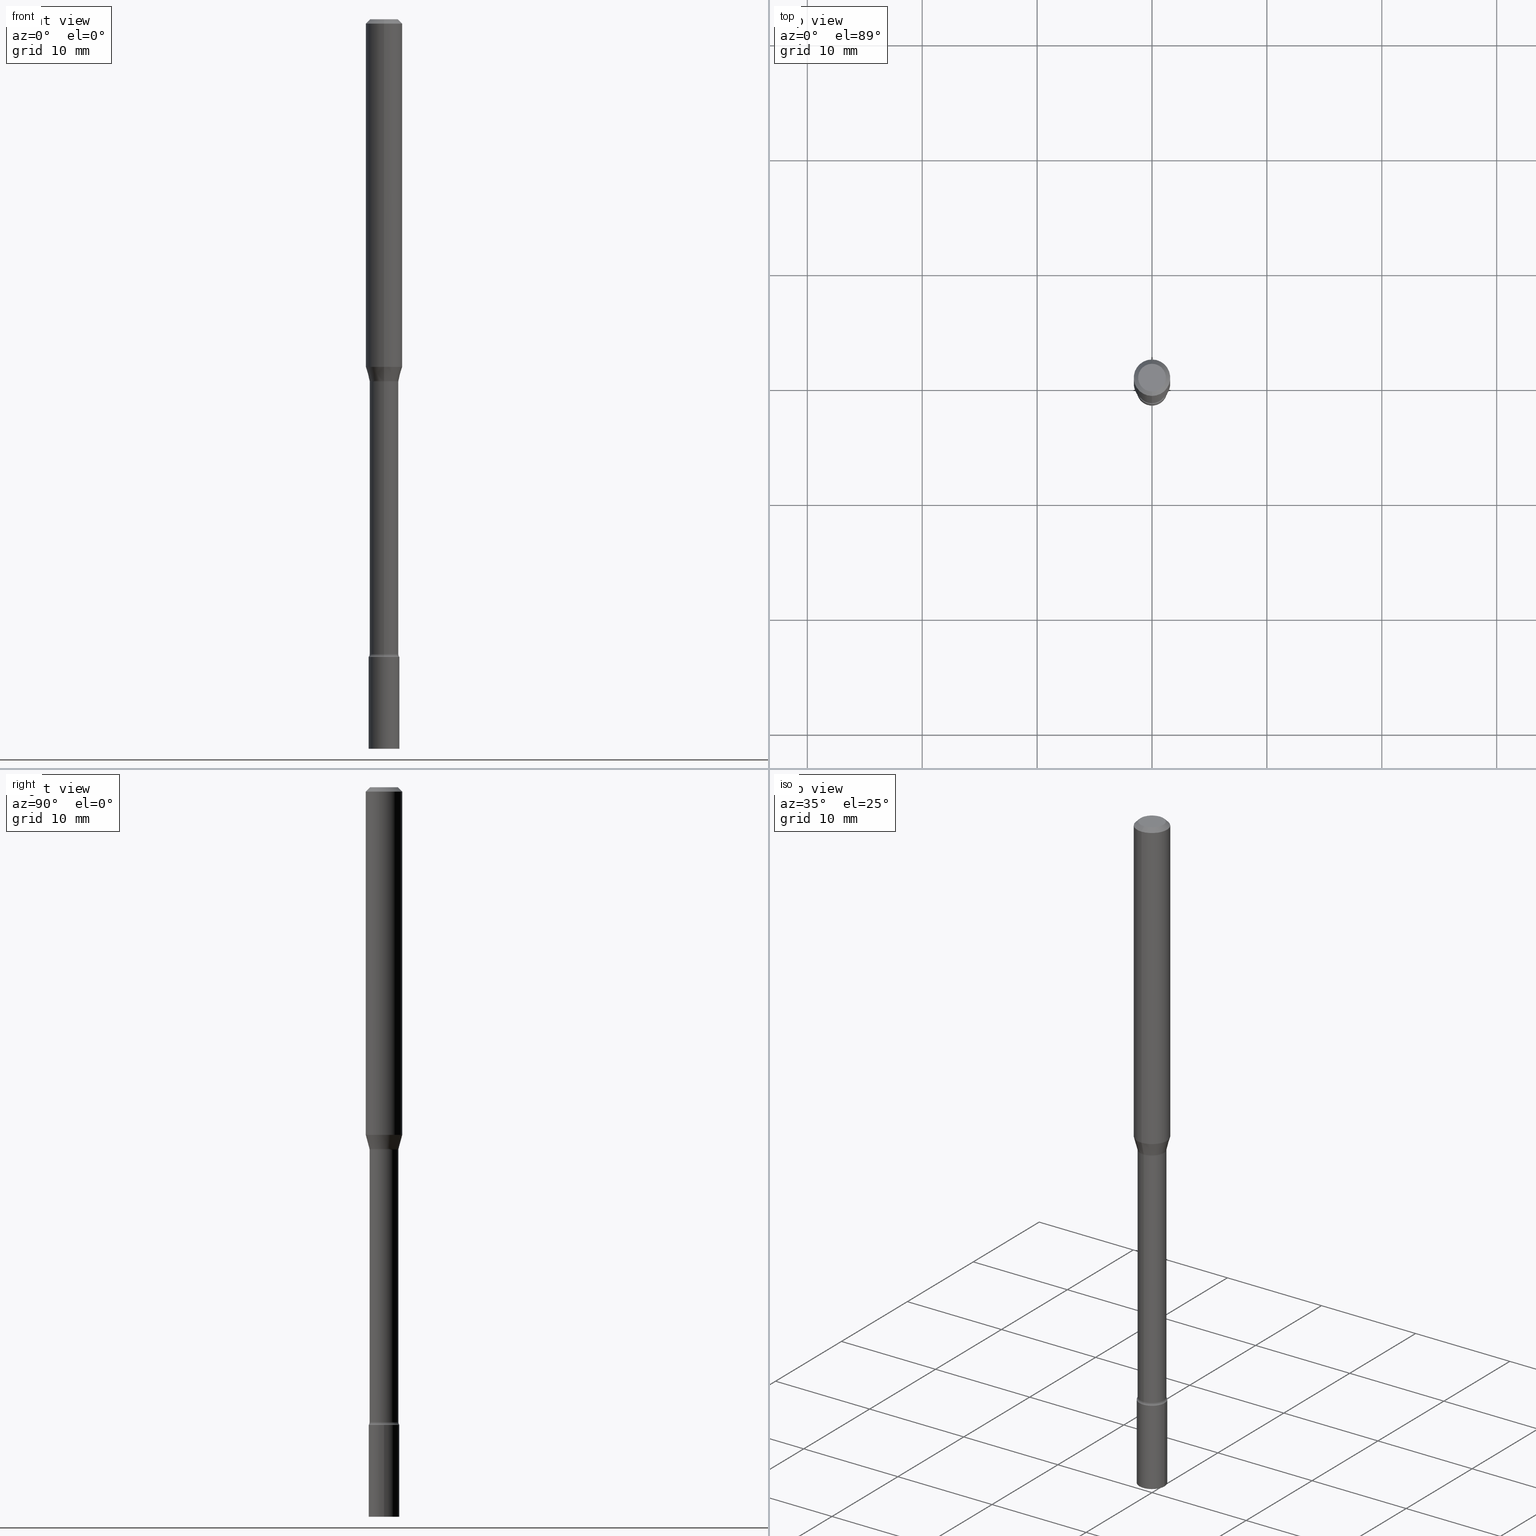
[diagram: canonical four-view strip — front | top / right | iso, engineering-drawing reading convention]
A machine part, canonical four-view strip (front | top / right | iso — engineering-drawing reading convention). The complete STEP part file that produces these views, byte-faithful:
ISO-10303-21;
HEADER;
FILE_DESCRIPTION (( 'STEP AP203' ),
    '1' );
FILE_NAME ('04318.STEP',
    '2024-03-08T23:07:44',
    ( '' ),
    ( '' ),
    'SwSTEP 2.0',
    'SolidWorks 2023',
    '' );
FILE_SCHEMA (( 'CONFIG_CONTROL_DESIGN' ));
ENDSEC;

DATA;
#1 = DIRECTION ( 'NONE',  ( 2.438088387897960049E-29, -3.491481338843145188E-15, -1.000000000000000000 ) ) ;
#2 = DIRECTION ( 'NONE',  ( -2.445520985940989068E-29, 3.491406614462877514E-15, 1.000000000000000000 ) ) ;
#3 = CYLINDRICAL_SURFACE ( 'NONE', #147, 0.06250000000000000000 ) ;
#4 = CARTESIAN_POINT ( 'NONE',  ( 4.440892098500918040E-16, 0.06249999999999587830, -1.191123531880469821 ) ) ;
#5 = DIRECTION ( 'NONE',  ( 1.000000000000000000, -6.982962677686268288E-15, 0.000000000000000000 ) ) ;
#6 = CONICAL_SURFACE ( 'NONE', #356, 0.06250000000000000000, 0.7853981633974483900 ) ;
#7 = CIRCLE ( 'NONE', #413, 0.05249999999999999806 ) ;
#8 = EDGE_LOOP ( 'NONE', ( #333, #244, #306, #433 ) ) ;
#9 = DIRECTION ( 'NONE',  ( -2.445520985940989068E-29, 3.491406614462877514E-15, 1.000000000000000000 ) ) ;
#10 = PERSON_AND_ORGANIZATION ( #282, #505 ) ;
#11 = CC_DESIGN_PERSON_AND_ORGANIZATION_ASSIGNMENT ( #402, #56, ( #197 ) ) ;
#12 = CIRCLE ( 'NONE', #95, 0.06250000000000000000 ) ;
#13 = DIRECTION ( 'NONE',  ( 1.000000000000000000, -6.982962677686265922E-15, 4.876176775795935793E-29 ) ) ;
#14 = ORIENTED_EDGE ( 'NONE', *, *, #266, .T. ) ;
#15 = CYLINDRICAL_SURFACE ( 'NONE', #474, 0.04935000000000002579 ) ;
#16 = ORIENTED_EDGE ( 'NONE', *, *, #47, .T. ) ;
#17 = CARTESIAN_POINT ( 'NONE',  ( -4.493536483090587310E-16, -0.06435000000000769271, -2.175803397366418146 ) ) ;
#18 = CIRCLE ( 'NONE', #315, 0.04749999999999999362 ) ;
#19 = CARTESIAN_POINT ( 'NONE',  ( 4.572342504616547735E-16, 0.06434999999999566067, -1.242174787463811381 ) ) ;
#20 = CIRCLE ( 'NONE', #294, 0.01500000000000002720 ) ;
#21 = CARTESIAN_POINT ( 'NONE',  ( -4.364351673553623336E-16, -0.06250000000000412170, -1.191123531880469377 ) ) ;
#22 = EDGE_CURVE ( 'NONE', #93, #165, #80, .T. ) ;
#23 = ORIENTED_EDGE ( 'NONE', *, *, #112, .F. ) ;
#24 = CC_DESIGN_PERSON_AND_ORGANIZATION_ASSIGNMENT ( #10, #363, ( #39 ) ) ;
#25 = DIRECTION ( 'NONE',  ( -2.445468806185136597E-29, 3.491481338843145583E-15, 1.000000000000000000 ) ) ;
#26 = CONICAL_SURFACE ( 'NONE', #89, 0.04986111260566397640, 0.2617993877991508511 ) ;
#27 = VERTEX_POINT ( 'NONE', #447 ) ;
#28 = MECHANICAL_CONTEXT ( 'NONE', #107, 'mechanical' ) ;
#29 = CARTESIAN_POINT ( 'NONE',  ( 5.343349341514523419E-29, -7.628886725372273518E-15, -2.185000000000000053 ) ) ;
#30 = ORIENTED_EDGE ( 'NONE', *, *, #419, .F. ) ;
#31 = DIRECTION ( 'NONE',  ( -6.982962677686265133E-15, -1.000000000000000000, 5.535659561629705166E-15 ) ) ;
#32 = APPLICATION_PROTOCOL_DEFINITION ( 'international standard', 'config_control_design', 1994, #379 ) ;
#33 = ADVANCED_FACE ( 'NONE', ( #113 ), #15, .T. ) ;
#34 = VERTEX_POINT ( 'NONE', #331 ) ;
#35 = CARTESIAN_POINT ( 'NONE',  ( 6.113672015462842613E-29, -8.728703347107864943E-15, -2.500000000000000000 ) ) ;
#36 = PERSON_AND_ORGANIZATION ( #282, #505 ) ;
#37 = VERTEX_POINT ( 'NONE', #88 ) ;
#38 = AXIS2_PLACEMENT_3D ( 'NONE', #70, #304, #256 ) ;
#39 = PRODUCT_DEFINITION_FORMATION_WITH_SPECIFIED_SOURCE ( 'ANY', '', #86, .NOT_KNOWN. ) ;
#40 = CARTESIAN_POINT ( 'NONE',  ( 3.666055405785900996E-16, 0.05249999999999126893, -2.500000000000000000 ) ) ;
#41 = CARTESIAN_POINT ( 'NONE',  ( 3.840629472727447874E-16, 0.04749999999999999362, -1.947592745229184119E-16 ) ) ;
#42 = DIRECTION ( 'NONE',  ( -2.445520985940989068E-29, 3.491406614462877514E-15, 1.000000000000000000 ) ) ;
#43 = ADVANCED_BREP_SHAPE_REPRESENTATION ( '04318', ( #470, #291, #214 ), #205 ) ;
#44 = DIRECTION ( 'NONE',  ( -6.982962677686263555E-15, -1.000000000000000000, 0.000000000000000000 ) ) ;
#45 = DIRECTION ( 'NONE',  ( -6.982962677686265922E-15, -1.000000000000000000, 3.491406614462877514E-15 ) ) ;
#46 = AXIS2_PLACEMENT_3D ( 'NONE', #434, #141, #215 ) ;
#47 = EDGE_CURVE ( 'NONE', #93, #27, #18, .T. ) ;
#48 = DIRECTION ( 'NONE',  ( 1.000000000000000000, -6.982962677686268288E-15, 0.000000000000000000 ) ) ;
#49 = PERSON_AND_ORGANIZATION ( #282, #505 ) ;
#50 = EDGE_CURVE ( 'NONE', #37, #317, #83, .T. ) ;
#51 = AXIS2_PLACEMENT_3D ( 'NONE', #480, #369, #230 ) ;
#52 = DIRECTION ( 'NONE',  ( -6.982962677686265133E-15, -1.000000000000000000, 3.491406614462877119E-15 ) ) ;
#53 = CARTESIAN_POINT ( 'NONE',  ( -4.493536483090808191E-16, -0.06435000000000433429, -1.242174787463810715 ) ) ;
#54 = ORIENTED_EDGE ( 'NONE', *, *, #203, .T. ) ;
#55 = PLANE ( 'NONE',  #459 ) ;
#56 = PERSON_AND_ORGANIZATION_ROLE ( 'classification_officer' ) ;
#57 = CARTESIAN_POINT ( 'NONE',  ( -4.364351673553916201E-16, -0.06250000000000000000, 2.182129134039298446E-16 ) ) ;
#58 = CIRCLE ( 'NONE', #51, 0.06250000000000000000 ) ;
#59 = CIRCLE ( 'NONE', #503, 0.01500000000000002720 ) ;
#60 = CC_DESIGN_SECURITY_CLASSIFICATION ( #197, ( #39 ) ) ;
#61 = ORIENTED_EDGE ( 'NONE', *, *, #140, .T. ) ;
#62 = DIRECTION ( 'NONE',  ( -6.982962677686265133E-15, -1.000000000000000000, 5.478915031980130409E-15 ) ) ;
#63 = ORIENTED_EDGE ( 'NONE', *, *, #449, .T. ) ;
#64 = CARTESIAN_POINT ( 'NONE',  ( -4.364351673553912750E-16, -0.06250000000000005551, -0.01499999999999981209 ) ) ;
#65 = VECTOR ( 'NONE', #236, 39.37007874015748143 ) ;
#66 = FACE_OUTER_BOUND ( 'NONE', #350, .T. ) ;
#67 = CIRCLE ( 'NONE', #118, 0.04934999999999997722 ) ;
#68 = ORIENTED_EDGE ( 'NONE', *, *, #228, .T. ) ;
#69 = PERSON_AND_ORGANIZATION_ROLE ( 'creator' ) ;
#70 = CARTESIAN_POINT ( 'NONE',  ( 7.071825611163725075E-46, -1.009626122903400025E-31, -2.891746033593174331E-17 ) ) ;
#71 = ORIENTED_EDGE ( 'NONE', *, *, #241, .F. ) ;
#72 = DIRECTION ( 'NONE',  ( -2.445468806185136597E-29, 3.491481338843145583E-15, 1.000000000000000000 ) ) ;
#73 = ORIENTED_EDGE ( 'NONE', *, *, #241, .T. ) ;
#74 = DIRECTION ( 'NONE',  ( -1.807323732225333689E-15, -0.2588190451025186856, 0.9659258262890687563 ) ) ;
#75 = ORIENTED_EDGE ( 'NONE', *, *, #210, .T. ) ;
#76 = VECTOR ( 'NONE', #74, 39.37007874015748854 ) ;
#77 = PLANE ( 'NONE',  #218 ) ;
#78 = PERSON_AND_ORGANIZATION ( #282, #505 ) ;
#79 = CARTESIAN_POINT ( 'NONE',  ( -3.446092081438173769E-16, -0.04935000000000002579, 1.723009164237430813E-16 ) ) ;
#80 = LINE ( 'NONE', #484, #65 ) ;
#81 = CARTESIAN_POINT ( 'NONE',  ( 0.000000000000000000, 0.000000000000000000, 0.000000000000000000 ) ) ;
#82 = CARTESIAN_POINT ( 'NONE',  ( 3.028270299854146031E-29, -4.323382631379869950E-15, -1.238292501787273237 ) ) ;
#83 = CIRCLE ( 'NONE', #464, 0.01500000000000002720 ) ;
#84 = AXIS2_PLACEMENT_3D ( 'NONE', #281, #163, #404 ) ;
#85 = AXIS2_PLACEMENT_3D ( 'NONE', #175, #385, #62 ) ;
#86 = PRODUCT ( '04318', '04318', '', ( #28 ) ) ;
#87 = DIRECTION ( 'NONE',  ( -6.982962677686265922E-15, -1.000000000000000000, 4.370956789862821150E-15 ) ) ;
#88 = CARTESIAN_POINT ( 'NONE',  ( 3.618438881858846483E-16, 0.04934999999999246934, -2.175803397366418590 ) ) ;
#89 = AXIS2_PLACEMENT_3D ( 'NONE', #495, #337, #462 ) ;
#90 = DIRECTION ( 'NONE',  ( -2.445520985940989068E-29, 3.491406614462877514E-15, 1.000000000000000000 ) ) ;
#91 = EDGE_CURVE ( 'NONE', #394, #317, #146, .T. ) ;
#92 = PRODUCT_DEFINITION_SHAPE ( 'NONE', 'NONE',  #360 ) ;
#93 = VERTEX_POINT ( 'NONE', #41 ) ;
#94 = EDGE_CURVE ( 'NONE', #165, #403, #58, .T. ) ;
#95 = AXIS2_PLACEMENT_3D ( 'NONE', #183, #310, #515 ) ;
#96 = CC_DESIGN_DATE_AND_TIME_ASSIGNMENT ( #514, #268, ( #360 ) ) ;
#97 = ORIENTED_EDGE ( 'NONE', *, *, #312, .T. ) ;
#98 = ORIENTED_EDGE ( 'NONE', *, *, #308, .F. ) ;
#99 = EDGE_LOOP ( 'NONE', ( #425, #338, #61, #251 ) ) ;
#100 = DIRECTION ( 'NONE',  ( 1.000000000000000000, 0.000000000000000000, 0.000000000000000000 ) ) ;
#101 = ORIENTED_EDGE ( 'NONE', *, *, #50, .T. ) ;
#102 = CARTESIAN_POINT ( 'NONE',  ( -3.481782883932334471E-16, -0.04986111260566829240, -1.238292501787272792 ) ) ;
#103 = FACE_OUTER_BOUND ( 'NONE', #353, .T. ) ;
#104 = VERTEX_POINT ( 'NONE', #359 ) ;
#105 = DIRECTION ( 'NONE',  ( -2.445520985940989068E-29, 3.491406614462877514E-15, 1.000000000000000000 ) ) ;
#106 = COORDINATED_UNIVERSAL_TIME_OFFSET ( 5, 0, .BEHIND. ) ;
#107 = APPLICATION_CONTEXT ( 'configuration controlled 3d designs of mechanical parts and assemblies' ) ;
#108 = CARTESIAN_POINT ( 'NONE',  ( 4.572342504616782422E-16, 0.06434999999999249654, -2.175803397366418590 ) ) ;
#109 = CIRCLE ( 'NONE', #246, 0.05249999999999999806 ) ;
#110 = DIRECTION ( 'NONE',  ( -2.445520985940989068E-29, 3.491406614462877514E-15, 1.000000000000000000 ) ) ;
#111 = PERSON_AND_ORGANIZATION_ROLE ( 'design_owner' ) ;
#112 = EDGE_CURVE ( 'NONE', #37, #467, #157, .T. ) ;
#113 = FACE_OUTER_BOUND ( 'NONE', #465, .T. ) ;
#114 = LINE ( 'NONE', #234, #346 ) ;
#115 = ADVANCED_FACE ( 'NONE', ( #398 ), #55, .T. ) ;
#116 = SHAPE_DEFINITION_REPRESENTATION ( #92, #43 ) ;
#117 = TOROIDAL_SURFACE ( 'NONE', #328, 0.06435000000000008769, 0.01500000000000002373 ) ;
#118 = AXIS2_PLACEMENT_3D ( 'NONE', #348, #351, #513 ) ;
#119 = FACE_OUTER_BOUND ( 'NONE', #409, .T. ) ;
#120 = UNCERTAINTY_MEASURE_WITH_UNIT (LENGTH_MEASURE( 1.000000000000000082E-05 ), #309, 'distance_accuracy_value', 'NONE');
#121 = DIRECTION ( 'NONE',  ( -2.445520985940988788E-29, 3.491406614462877514E-15, 1.000000000000000000 ) ) ;
#122 = CARTESIAN_POINT ( 'NONE',  ( 0.000000000000000000, 0.000000000000000000, 0.000000000000000000 ) ) ;
#123 = FACE_OUTER_BOUND ( 'NONE', #133, .T. ) ;
#124 = DIRECTION ( 'NONE',  ( -2.445468806185136597E-29, 3.491481338843145583E-15, 1.000000000000000000 ) ) ;
#125 = ORIENTED_EDGE ( 'NONE', *, *, #173, .F. ) ;
#126 = ADVANCED_FACE ( 'NONE', ( #167 ), #6, .T. ) ;
#127 = EDGE_LOOP ( 'NONE', ( #516, #14, #324, #30 ) ) ;
#128 = CIRCLE ( 'NONE', #517, 0.06250000000000000000 ) ;
#129 = ORIENTED_EDGE ( 'NONE', *, *, #326, .F. ) ;
#130 = ADVANCED_FACE ( 'NONE', ( #276 ), #117, .F. ) ;
#131 = CARTESIAN_POINT ( 'NONE',  ( 0.000000000000000000, 0.000000000000000000, 0.000000000000000000 ) ) ;
#132 = ADVANCED_FACE ( 'NONE', ( #292 ), #77, .F. ) ;
#133 = EDGE_LOOP ( 'NONE', ( #184, #504, #383, #313 ) ) ;
#134 = FACE_OUTER_BOUND ( 'NONE', #8, .T. ) ;
#135 = VECTOR ( 'NONE', #340, 39.37007874015748143 ) ;
#136 = AXIS2_PLACEMENT_3D ( 'NONE', #150, #437, #371 ) ;
#137 = APPROVAL_PERSON_ORGANIZATION ( #185, #456, #273 ) ;
#138 = VERTEX_POINT ( 'NONE', #4 ) ;
#139 = VERTEX_POINT ( 'NONE', #374 ) ;
#140 = EDGE_CURVE ( 'NONE', #467, #394, #20, .T. ) ;
#141 = DIRECTION ( 'NONE',  ( -2.445520985940989068E-29, 3.491406614462877514E-15, 1.000000000000000000 ) ) ;
#142 = CARTESIAN_POINT ( 'NONE',  ( 5.343463354281061711E-29, -7.628723452601386385E-15, -2.185000000000000053 ) ) ;
#143 = ORIENTED_EDGE ( 'NONE', *, *, #312, .F. ) ;
#144 = CYLINDRICAL_SURFACE ( 'NONE', #316, 0.05249999999999999806 ) ;
#145 = COORDINATED_UNIVERSAL_TIME_OFFSET ( 5, 0, .BEHIND. ) ;
#146 = CIRCLE ( 'NONE', #441, 0.05249999999999999806 ) ;
#147 = AXIS2_PLACEMENT_3D ( 'NONE', #162, #191, #307 ) ;
#148 = ORIENTED_EDGE ( 'NONE', *, *, #91, .F. ) ;
#149 = APPLICATION_PROTOCOL_DEFINITION ( 'international standard', 'config_control_design', 1994, #107 ) ;
#150 = CARTESIAN_POINT ( 'NONE',  ( 5.320859336651219735E-29, -7.596776958896367928E-15, -2.175803397366418590 ) ) ;
#151 = EDGE_LOOP ( 'NONE', ( #148, #300 ) ) ;
#152 = EDGE_CURVE ( 'NONE', #429, #493, #478, .T. ) ;
#153 = DIRECTION ( 'NONE',  ( 0.000000000000000000, 0.000000000000000000, 1.000000000000000000 ) ) ;
#154 = CARTESIAN_POINT ( 'NONE',  ( 3.668281478911491082E-31, -5.237109921694327463E-17, -0.01500000000000003067 ) ) ;
#155 = CARTESIAN_POINT ( 'NONE',  ( 3.666055405785824082E-16, 0.05249999999999236527, -2.185000000000000497 ) ) ;
#156 = ADVANCED_FACE ( 'NONE', ( #227 ), #475, .F. ) ;
#157 = CIRCLE ( 'NONE', #345, 0.04935000000000006742 ) ;
#158 = DIRECTION ( 'NONE',  ( 7.105427357601001859E-15, 1.000000000000000000, 0.000000000000000000 ) ) ;
#159 = CIRCLE ( 'NONE', #460, 0.05249999999999999806 ) ;
#160 = FACE_OUTER_BOUND ( 'NONE', #180, .T. ) ;
#161 = LINE ( 'NONE', #461, #219 ) ;
#162 = CARTESIAN_POINT ( 'NONE',  ( 0.000000000000000000, 0.000000000000000000, 0.000000000000000000 ) ) ;
#163 = DIRECTION ( 'NONE',  ( -2.445520985940989068E-29, 3.491406614462877514E-15, 1.000000000000000000 ) ) ;
#164 = AXIS2_PLACEMENT_3D ( 'NONE', #384, #506, #179 ) ;
#165 = VERTEX_POINT ( 'NONE', #186 ) ;
#166 = DIMENSIONAL_EXPONENTS ( 1.000000000000000000, 0.000000000000000000, 0.000000000000000000, 0.000000000000000000, 0.000000000000000000, 0.000000000000000000, 0.000000000000000000 ) ;
#167 = FACE_OUTER_BOUND ( 'NONE', #311, .T. ) ;
#168 = DIRECTION ( 'NONE',  ( -6.982962677686263555E-15, -1.000000000000000000, 0.000000000000000000 ) ) ;
#169 = FACE_OUTER_BOUND ( 'NONE', #417, .T. ) ;
#170 = VERTEX_POINT ( 'NONE', #510 ) ;
#171 = CLOSED_SHELL ( 'NONE', ( #428, #297, #130, #237, #189, #494, #329, #477, #126, #132, #264, #156, #33, #454 ) ) ;
#172 = AXIS2_PLACEMENT_3D ( 'NONE', #155, #121, #45 ) ;
#173 = EDGE_CURVE ( 'NONE', #27, #403, #161, .T. ) ;
#174 = DIRECTION ( 'NONE',  ( -2.445520985940989068E-29, 3.491406614462877514E-15, 1.000000000000000000 ) ) ;
#175 = CARTESIAN_POINT ( 'NONE',  ( 3.028270299854146031E-29, -4.323382631379869950E-15, -1.238292501787273237 ) ) ;
#176 = ORIENTED_EDGE ( 'NONE', *, *, #22, .F. ) ;
#177 = CARTESIAN_POINT ( 'NONE',  ( -3.446092081437867100E-16, -0.04935000000000431403, -1.242174787463810715 ) ) ;
#178 = LOCAL_TIME ( 18, 7, 44.00000000000000000, #106 ) ;
#179 = DIRECTION ( 'NONE',  ( -6.982962677686266711E-15, -1.000000000000000000, 3.491406614462877908E-15 ) ) ;
#180 = EDGE_LOOP ( 'NONE', ( #220, #501, #512, #424 ) ) ;
#181 = EDGE_CURVE ( 'NONE', #104, #139, #453, .T. ) ;
#182 = ORIENTED_EDGE ( 'NONE', *, *, #181, .F. ) ;
#183 = CARTESIAN_POINT ( 'NONE',  ( 2.912917594061839297E-29, -4.158696577849855606E-15, -1.191123531880469599 ) ) ;
#184 = ORIENTED_EDGE ( 'NONE', *, *, #449, .F. ) ;
#185 = PERSON_AND_ORGANIZATION ( #282, #505 ) ;
#186 = CARTESIAN_POINT ( 'NONE',  ( 4.440892098500919026E-16, 0.06249999999999995837, -0.01500000000000024751 ) ) ;
#187 = AXIS2_PLACEMENT_3D ( 'NONE', #81, #110, #367 ) ;
#188 = EDGE_LOOP ( 'NONE', ( #182, #75, #68, #143 ) ) ;
#189 = ADVANCED_FACE ( 'NONE', ( #223 ), #3, .T. ) ;
#190 = DIRECTION ( 'NONE',  ( -2.445520985940989068E-29, 3.491406614462877514E-15, 1.000000000000000000 ) ) ;
#191 = DIRECTION ( 'NONE',  ( -2.445520985940989068E-29, 3.491406614462877514E-15, 1.000000000000000000 ) ) ;
#192 = CARTESIAN_POINT ( 'NONE',  ( 7.071825611163725075E-46, -1.009626122903400025E-31, -2.891746033593174331E-17 ) ) ;
#193 = CARTESIAN_POINT ( 'NONE',  ( 5.343349341514523419E-29, -7.628886725372273518E-15, -2.185000000000000053 ) ) ;
#194 = DIRECTION ( 'NONE',  ( -2.445520985940989068E-29, 3.491406614462877514E-15, 1.000000000000000000 ) ) ;
#195 = AXIS2_PLACEMENT_3D ( 'NONE', #498, #332, #463 ) ;
#196 = CARTESIAN_POINT ( 'NONE',  ( 3.028270299854146031E-29, -4.323382631379869950E-15, -1.238292501787273237 ) ) ;
#197 = SECURITY_CLASSIFICATION ( '', '', #235 ) ;
#198 = EDGE_CURVE ( 'NONE', #467, #37, #368, .T. ) ;
#199 = DIRECTION ( 'NONE',  ( -2.445520985940989068E-29, 3.491406614462877514E-15, 1.000000000000000000 ) ) ;
#200 = DIRECTION ( 'NONE',  ( 2.445520985940989068E-29, -3.491406614462877514E-15, -1.000000000000000000 ) ) ;
#201 = PERSON_AND_ORGANIZATION_ROLE ( 'creator' ) ;
#202 = CARTESIAN_POINT ( 'NONE',  ( -3.446092081437644740E-16, -0.04935000000000766551, -2.175803397366418146 ) ) ;
#203 = EDGE_CURVE ( 'NONE', #34, #414, #67, .T. ) ;
#204 = FACE_OUTER_BOUND ( 'NONE', #151, .T. ) ;
#205 =( GEOMETRIC_REPRESENTATION_CONTEXT ( 3 ) GLOBAL_UNCERTAINTY_ASSIGNED_CONTEXT ( ( #120 ) ) GLOBAL_UNIT_ASSIGNED_CONTEXT ( ( #309, #255, #270 ) ) REPRESENTATION_CONTEXT ( 'NONE', 'WORKASPACE' ) );
#206 = CARTESIAN_POINT ( 'NONE',  ( 5.343463354281061711E-29, -7.628723452601386385E-15, -2.185000000000000053 ) ) ;
#207 = ADVANCED_FACE ( 'NONE', ( #267 ), #144, .T. ) ;
#208 = ORIENTED_EDGE ( 'NONE', *, *, #366, .T. ) ;
#209 = DIRECTION ( 'NONE',  ( 6.982962677686265922E-15, 1.000000000000000000, -3.491406614462877514E-15 ) ) ;
#210 = EDGE_CURVE ( 'NONE', #104, #261, #274, .T. ) ;
#211 = CARTESIAN_POINT ( 'NONE',  ( 4.440892098500625669E-16, 0.06250000000000000000, -2.182129134039298446E-16 ) ) ;
#212 = DIRECTION ( 'NONE',  ( 1.839019923739603865E-15, 0.2588190451025254579, 0.9659258262890669799 ) ) ;
#213 = CIRCLE ( 'NONE', #339, 0.04986111260566397640 ) ;
#214 = AXIS2_PLACEMENT_3D ( 'NONE', #396, #153, #100 ) ;
#215 = DIRECTION ( 'NONE',  ( -6.982962677686265922E-15, -1.000000000000000000, 3.491406614462877514E-15 ) ) ;
#216 = ORIENTED_EDGE ( 'NONE', *, *, #266, .F. ) ;
#217 = DIRECTION ( 'NONE',  ( -2.445520985940989068E-29, 3.491406614462877514E-15, 1.000000000000000000 ) ) ;
#218 = AXIS2_PLACEMENT_3D ( 'NONE', #248, #400, #209 ) ;
#219 = VECTOR ( 'NONE', #263, 39.37007874015748143 ) ;
#220 = ORIENTED_EDGE ( 'NONE', *, *, #198, .T. ) ;
#221 = APPROVAL_DATE_TIME ( #520, #381 ) ;
#222 = CARTESIAN_POINT ( 'NONE',  ( 5.343349341514523419E-29, -7.628886725372273518E-15, -2.185000000000000053 ) ) ;
#223 = FACE_OUTER_BOUND ( 'NONE', #344, .T. ) ;
#224 = ORIENTED_EDGE ( 'NONE', *, *, #397, .T. ) ;
#225 = DIRECTION ( 'NONE',  ( 1.000000000000000000, -6.982962677686265922E-15, 4.876176775795935232E-29 ) ) ;
#226 = ORIENTED_EDGE ( 'NONE', *, *, #140, .F. ) ;
#227 = FACE_OUTER_BOUND ( 'NONE', #99, .T. ) ;
#228 = EDGE_CURVE ( 'NONE', #261, #491, #327, .T. ) ;
#229 = CONICAL_SURFACE ( 'NONE', #378, 0.06250000000000000000, 0.7853981633974483900 ) ;
#230 = DIRECTION ( 'NONE',  ( -6.982962677686265922E-15, -1.000000000000000000, 3.483106191921935554E-15 ) ) ;
#231 = DATE_AND_TIME ( #481, #178 ) ;
#232 = ORIENTED_EDGE ( 'NONE', *, *, #210, .F. ) ;
#233 = APPROVAL_DATE_TIME ( #486, #258 ) ;
#234 = CARTESIAN_POINT ( 'NONE',  ( 3.506528400976095264E-16, 0.04935000000000002579, -1.723009164237430813E-16 ) ) ;
#235 = SECURITY_CLASSIFICATION_LEVEL ( 'unclassified' ) ;
#236 = DIRECTION ( 'NONE',  ( 4.937700262164548042E-15, 0.7071067811865451302, -0.7071067811865499042 ) ) ;
#237 = ADVANCED_FACE ( 'NONE', ( #242 ), #229, .T. ) ;
#238 = CARTESIAN_POINT ( 'NONE',  ( 3.668281478911491082E-31, -5.237109921694327463E-17, -0.01500000000000003067 ) ) ;
#239 = VECTOR ( 'NONE', #406, 39.37007874015748143 ) ;
#240 = DIRECTION ( 'NONE',  ( -6.982962677686265133E-15, -1.000000000000000000, 5.478915031980130409E-15 ) ) ;
#241 = EDGE_CURVE ( 'NONE', #403, #165, #451, .T. ) ;
#242 = FACE_OUTER_BOUND ( 'NONE', #254, .T. ) ;
#243 = CC_DESIGN_PERSON_AND_ORGANIZATION_ASSIGNMENT ( #49, #201, ( #39 ) ) ;
#244 = ORIENTED_EDGE ( 'NONE', *, *, #352, .T. ) ;
#245 = DIRECTION ( 'NONE',  ( 1.000000000000000000, -7.105427357601001070E-15, 4.926314593432351429E-29 ) ) ;
#246 = AXIS2_PLACEMENT_3D ( 'NONE', #193, #362, #5 ) ;
#247 = LOCAL_TIME ( 18, 7, 44.00000000000000000, #450 ) ;
#248 = CARTESIAN_POINT ( 'NONE',  ( 3.316907271900976096E-16, 0.04749999999999999362, -1.803005443549525464E-16 ) ) ;
#249 = CARTESIAN_POINT ( 'NONE',  ( 3.542845135887392157E-16, 0.04986111260565965347, -1.238292501787273459 ) ) ;
#250 = ORIENTED_EDGE ( 'NONE', *, *, #203, .F. ) ;
#251 = ORIENTED_EDGE ( 'NONE', *, *, #91, .T. ) ;
#252 = AXIS2_PLACEMENT_3D ( 'NONE', #82, #287, #401 ) ;
#253 = CIRCLE ( 'NONE', #303, 0.04934999999999997722 ) ;
#254 = EDGE_LOOP ( 'NONE', ( #519, #435, #73, #176 ) ) ;
#255 =( NAMED_UNIT ( * ) PLANE_ANGLE_UNIT ( ) SI_UNIT ( $, .RADIAN. ) );
#256 = DIRECTION ( 'NONE',  ( -6.982962677686266711E-15, -1.000000000000000000, 3.491406614462877514E-15 ) ) ;
#257 = ORIENTED_EDGE ( 'NONE', *, *, #342, .F. ) ;
#258 = APPROVAL ( #399, 'UNSPECIFIED' ) ;
#259 = DIRECTION ( 'NONE',  ( -2.445468806185136877E-29, 3.491481338843145188E-15, 1.000000000000000000 ) ) ;
#260 = DIRECTION ( 'NONE',  ( 7.105427357601001859E-15, 1.000000000000000000, 0.000000000000000000 ) ) ;
#261 = VERTEX_POINT ( 'NONE', #448 ) ;
#262 = VECTOR ( 'NONE', #174, 39.37007874015748143 ) ;
#263 = DIRECTION ( 'NONE',  ( -4.851104656540964275E-15, -0.7071067811865500152, -0.7071067811865450192 ) ) ;
#264 = ADVANCED_FACE ( 'NONE', ( #204 ), #482, .F. ) ;
#265 = ORIENTED_EDGE ( 'NONE', *, *, #228, .F. ) ;
#266 = EDGE_CURVE ( 'NONE', #170, #429, #442, .T. ) ;
#267 = FACE_OUTER_BOUND ( 'NONE', #188, .T. ) ;
#268 = DATE_TIME_ROLE ( 'creation_date' ) ;
#269 = EDGE_LOOP ( 'NONE', ( #23, #101, #420, #226 ) ) ;
#270 =( NAMED_UNIT ( * ) SI_UNIT ( $, .STERADIAN. ) SOLID_ANGLE_UNIT ( ) );
#271 = DIRECTION ( 'NONE',  ( -6.982962677686265922E-15, -1.000000000000000000, 5.203519987931929940E-15 ) ) ;
#272 = CALENDAR_DATE ( 2024, 8, 3 ) ;
#273 = APPROVAL_ROLE ( '' ) ;
#274 = CIRCLE ( 'NONE', #496, 0.05249999999999999806 ) ;
#275 = CC_DESIGN_APPROVAL ( #381, ( #360 ) ) ;
#276 = FACE_OUTER_BOUND ( 'NONE', #269, .T. ) ;
#277 = LINE ( 'NONE', #79, #483 ) ;
#278 = DIRECTION ( 'NONE',  ( -6.982962677686266711E-15, -1.000000000000000000, 3.491406614462877514E-15 ) ) ;
#279 = APPROVAL_ROLE ( '' ) ;
#280 = CARTESIAN_POINT ( 'NONE',  ( 3.730349362741061277E-16, 0.05249999999999238609, -2.185000000000000497 ) ) ;
#281 = CARTESIAN_POINT ( 'NONE',  ( 3.668281478911491082E-31, -5.237109921694327463E-17, -0.01500000000000003067 ) ) ;
#282 = PERSON ( 'UNSPECIFIED', 'UNSPECIFIED', 'UNSPECIFIED', ('UNSPECIFIED'), ('UNSPECIFIED'), ('UNSPECIFIED') ) ;
#283 = VECTOR ( 'NONE', #212, 39.37007874015748854 ) ;
#284 = CC_DESIGN_APPROVAL ( #456, ( #39 ) ) ;
#285 = EDGE_CURVE ( 'NONE', #429, #170, #213, .T. ) ;
#286 = CC_DESIGN_DATE_AND_TIME_ASSIGNMENT ( #231, #325, ( #197 ) ) ;
#287 = DIRECTION ( 'NONE',  ( -2.445520985940989068E-29, 3.491406614462877514E-15, 1.000000000000000000 ) ) ;
#288 = EDGE_CURVE ( 'NONE', #493, #138, #128, .T. ) ;
#289 = CARTESIAN_POINT ( 'NONE',  ( 5.320972869541277230E-29, -7.596614373335913893E-15, -2.175803397366418590 ) ) ;
#290 = FACE_OUTER_BOUND ( 'NONE', #127, .T. ) ;
#291 = MANIFOLD_SOLID_BREP ( 'Body-Move/Copy2[2]', #171 ) ;
#292 = FACE_OUTER_BOUND ( 'NONE', #365, .T. ) ;
#293 = LINE ( 'NONE', #249, #283 ) ;
#294 = AXIS2_PLACEMENT_3D ( 'NONE', #17, #361, #44 ) ;
#295 = LOCAL_TIME ( 18, 7, 44.00000000000000000, #318 ) ;
#296 = DESIGN_CONTEXT ( 'detailed design', #379, 'design' ) ;
#297 = ADVANCED_FACE ( 'NONE', ( #160 ), #321, .T. ) ;
#298 = ORIENTED_EDGE ( 'NONE', *, *, #366, .F. ) ;
#299 = CARTESIAN_POINT ( 'NONE',  ( 6.113672015462842613E-29, -8.728703347107864943E-15, -2.500000000000000000 ) ) ;
#300 = ORIENTED_EDGE ( 'NONE', *, *, #412, .F. ) ;
#301 = EDGE_CURVE ( 'NONE', #467, #414, #277, .T. ) ;
#302 = VECTOR ( 'NONE', #259, 39.37007874015748143 ) ;
#303 = AXIS2_PLACEMENT_3D ( 'NONE', #502, #349, #380 ) ;
#304 = DIRECTION ( 'NONE',  ( -2.445520985940989068E-29, 3.491406614462877514E-15, 1.000000000000000000 ) ) ;
#305 = CC_DESIGN_PERSON_AND_ORGANIZATION_ASSIGNMENT ( #36, #69, ( #360 ) ) ;
#306 = ORIENTED_EDGE ( 'NONE', *, *, #288, .F. ) ;
#307 = DIRECTION ( 'NONE',  ( -6.982962677686265922E-15, -1.000000000000000000, 3.491406614462877514E-15 ) ) ;
#308 = EDGE_CURVE ( 'NONE', #37, #34, #114, .T. ) ;
#309 =( CONVERSION_BASED_UNIT ( 'INCH', #508 ) LENGTH_UNIT ( ) NAMED_UNIT ( #166 ) );
#310 = DIRECTION ( 'NONE',  ( -2.445520985940989068E-29, 3.491406614462877514E-15, 1.000000000000000000 ) ) ;
#311 = EDGE_LOOP ( 'NONE', ( #125, #375, #476, #387 ) ) ;
#312 = EDGE_CURVE ( 'NONE', #139, #491, #109, .T. ) ;
#313 = ORIENTED_EDGE ( 'NONE', *, *, #94, .F. ) ;
#314 = CARTESIAN_POINT ( 'NONE',  ( 0.000000000000000000, 0.000000000000000000, 0.000000000000000000 ) ) ;
#315 = AXIS2_PLACEMENT_3D ( 'NONE', #192, #194, #278 ) ;
#316 = AXIS2_PLACEMENT_3D ( 'NONE', #314, #72, #225 ) ;
#317 = VERTEX_POINT ( 'NONE', #280 ) ;
#318 = COORDINATED_UNIVERSAL_TIME_OFFSET ( 5, 0, .BEHIND. ) ;
#319 = DIRECTION ( 'NONE',  ( -2.445520985940989068E-29, 3.491406614462877514E-15, 1.000000000000000000 ) ) ;
#320 = DIRECTION ( 'NONE',  ( -1.000000000000000000, 6.982962677686265922E-15, -4.876176775795935793E-29 ) ) ;
#321 = CYLINDRICAL_SURFACE ( 'NONE', #187, 0.04935000000000002579 ) ;
#322 = ADVANCED_FACE ( 'NONE', ( #169 ), #423, .T. ) ;
#323 = LOCAL_TIME ( 18, 7, 44.00000000000000000, #145 ) ;
#324 = ORIENTED_EDGE ( 'NONE', *, *, #152, .T. ) ;
#325 = DATE_TIME_ROLE ( 'classification_date' ) ;
#326 = EDGE_CURVE ( 'NONE', #261, #104, #7, .T. ) ;
#327 = LINE ( 'NONE', #408, #239 ) ;
#328 = AXIS2_PLACEMENT_3D ( 'NONE', #458, #90, #445 ) ;
#329 = ADVANCED_FACE ( 'NONE', ( #290 ), #26, .T. ) ;
#330 = CIRCLE ( 'NONE', #421, 0.05249999999999999806 ) ;
#331 = CARTESIAN_POINT ( 'NONE',  ( 3.506528400976626759E-16, 0.04934999999999563347, -1.242174787463811381 ) ) ;
#332 = DIRECTION ( 'NONE',  ( -2.445520985940989068E-29, 3.491406614462877514E-15, 1.000000000000000000 ) ) ;
#333 = ORIENTED_EDGE ( 'NONE', *, *, #285, .T. ) ;
#334 = DIRECTION ( 'NONE',  ( 2.445520985940989068E-29, -3.491406614462877514E-15, -1.000000000000000000 ) ) ;
#335 = LINE ( 'NONE', #57, #262 ) ;
#336 = EDGE_CURVE ( 'NONE', #429, #414, #388, .T. ) ;
#337 = DIRECTION ( 'NONE',  ( -2.445520985940989068E-29, 3.491406614462877514E-15, 1.000000000000000000 ) ) ;
#338 = ORIENTED_EDGE ( 'NONE', *, *, #198, .F. ) ;
#339 = AXIS2_PLACEMENT_3D ( 'NONE', #196, #199, #240 ) ;
#340 = DIRECTION ( 'NONE',  ( -2.445520985940989068E-29, 3.491406614462877514E-15, 1.000000000000000000 ) ) ;
#341 = CYLINDRICAL_SURFACE ( 'NONE', #46, 0.06250000000000000000 ) ;
#342 = EDGE_CURVE ( 'NONE', #493, #403, #335, .T. ) ;
#343 = PRODUCT_RELATED_PRODUCT_CATEGORY ( 'detail', '', ( #86 ) ) ;
#344 = EDGE_LOOP ( 'NONE', ( #473, #63, #71, #257 ) ) ;
#345 = AXIS2_PLACEMENT_3D ( 'NONE', #289, #319, #455 ) ;
#346 = VECTOR ( 'NONE', #42, 39.37007874015748143 ) ;
#347 = ORIENTED_EDGE ( 'NONE', *, *, #336, .T. ) ;
#348 = CARTESIAN_POINT ( 'NONE',  ( 3.037764510949538062E-29, -4.336937269270169085E-15, -1.242174787463811159 ) ) ;
#349 = DIRECTION ( 'NONE',  ( -2.445520985940989068E-29, 3.491406614462877514E-15, 1.000000000000000000 ) ) ;
#350 = EDGE_LOOP ( 'NONE', ( #224, #97 ) ) ;
#351 = DIRECTION ( 'NONE',  ( -2.445520985940989068E-29, 3.491406614462877514E-15, 1.000000000000000000 ) ) ;
#352 = EDGE_CURVE ( 'NONE', #170, #138, #293, .T. ) ;
#353 = EDGE_LOOP ( 'NONE', ( #216, #208, #54, #469 ) ) ;
#354 = DIRECTION ( 'NONE',  ( -2.445468806185136597E-29, 3.491481338843145583E-15, 1.000000000000000000 ) ) ;
#355 = APPROVAL_STATUS ( 'not_yet_approved' ) ;
#356 = AXIS2_PLACEMENT_3D ( 'NONE', #154, #334, #415 ) ;
#357 = AXIS2_PLACEMENT_3D ( 'NONE', #468, #217, #31 ) ;
#358 = ORIENTED_EDGE ( 'NONE', *, *, #372, .T. ) ;
#359 = CARTESIAN_POINT ( 'NONE',  ( -0.05249999999999999806, -7.805760099966015907E-15, -2.500000000000000000 ) ) ;
#360 = PRODUCT_DEFINITION ( 'UNKNOWN', '', #39, #296 ) ;
#361 = DIRECTION ( 'NONE',  ( -1.000000000000000000, 6.982962677686265922E-15, -4.883557194083112340E-29 ) ) ;
#362 = DIRECTION ( 'NONE',  ( -2.445468806185136597E-29, 3.491481338843145583E-15, 1.000000000000000000 ) ) ;
#363 = PERSON_AND_ORGANIZATION_ROLE ( 'design_supplier' ) ;
#364 = AXIS2_PLACEMENT_3D ( 'NONE', #131, #411, #499 ) ;
#365 = EDGE_LOOP ( 'NONE', ( #16, #358 ) ) ;
#366 = EDGE_CURVE ( 'NONE', #170, #34, #59, .T. ) ;
#367 = DIRECTION ( 'NONE',  ( -6.982962677686265133E-15, -1.000000000000000000, 3.491406614462877119E-15 ) ) ;
#368 = CIRCLE ( 'NONE', #357, 0.04935000000000006742 ) ;
#369 = DIRECTION ( 'NONE',  ( -2.445520985940989068E-29, 3.491406614462877514E-15, 1.000000000000000000 ) ) ;
#370 = DIRECTION ( 'NONE',  ( -1.000000000000000000, 6.982962677686265922E-15, -4.883557194083112340E-29 ) ) ;
#371 = DIRECTION ( 'NONE',  ( -6.982962677686266711E-15, -1.000000000000000000, 3.491406614462877908E-15 ) ) ;
#372 = EDGE_CURVE ( 'NONE', #27, #93, #487, .T. ) ;
#373 = CARTESIAN_POINT ( 'NONE',  ( -0.05249999999999999806, 3.730349362740525838E-16, -2.582440922383825311E-30 ) ) ;
#374 = CARTESIAN_POINT ( 'NONE',  ( -0.05249999999999999806, -7.805760099966015907E-15, -2.185000000000000053 ) ) ;
#375 = ORIENTED_EDGE ( 'NONE', *, *, #47, .F. ) ;
#376 = LINE ( 'NONE', #211, #135 ) ;
#377 = CLOSED_SHELL ( 'NONE', ( #322, #438, #207, #115 ) ) ;
#378 = AXIS2_PLACEMENT_3D ( 'NONE', #238, #200, #485 ) ;
#379 = APPLICATION_CONTEXT ( 'configuration controlled 3d designs of mechanical parts and assemblies' ) ;
#380 = DIRECTION ( 'NONE',  ( -6.982962677686265922E-15, -1.000000000000000000, 5.535659561629715421E-15 ) ) ;
#381 = APPROVAL ( #471, 'UNSPECIFIED' ) ;
#382 = DIRECTION ( 'NONE',  ( 1.000000000000000000, -6.982962677686268288E-15, 0.000000000000000000 ) ) ;
#383 = ORIENTED_EDGE ( 'NONE', *, *, #342, .T. ) ;
#384 = CARTESIAN_POINT ( 'NONE',  ( 3.037699694572402143E-29, -4.337030090011347147E-15, -1.242174787463811159 ) ) ;
#385 = DIRECTION ( 'NONE',  ( -2.445520985940989068E-29, 3.491406614462877514E-15, 1.000000000000000000 ) ) ;
#386 = DIRECTION ( 'NONE',  ( -2.445520985940989068E-29, 3.491406614462877514E-15, 1.000000000000000000 ) ) ;
#387 = ORIENTED_EDGE ( 'NONE', *, *, #94, .T. ) ;
#388 = CIRCLE ( 'NONE', #405, 0.01500000000000002720 ) ;
#389 = CARTESIAN_POINT ( 'NONE',  ( 0.05249999999999999806, -7.995492265950801889E-15, -2.185000000000000053 ) ) ;
#390 = PLANE ( 'NONE',  #466 ) ;
#391 = ORIENTED_EDGE ( 'NONE', *, *, #397, .F. ) ;
#392 = COORDINATED_UNIVERSAL_TIME_OFFSET ( 5, 0, .BEHIND. ) ;
#393 = DIRECTION ( 'NONE',  ( -6.982962677686265922E-15, -1.000000000000000000, 5.203519987931929940E-15 ) ) ;
#394 = VERTEX_POINT ( 'NONE', #472 ) ;
#395 = ORIENTED_EDGE ( 'NONE', *, *, #181, .T. ) ;
#396 = CARTESIAN_POINT ( 'NONE',  ( 0.000000000000000000, 0.000000000000000000, 0.000000000000000000 ) ) ;
#397 = EDGE_CURVE ( 'NONE', #491, #139, #330, .T. ) ;
#398 = FACE_OUTER_BOUND ( 'NONE', #509, .T. ) ;
#399 = APPROVAL_STATUS ( 'not_yet_approved' ) ;
#400 = DIRECTION ( 'NONE',  ( 2.445520985940988788E-29, -3.491406614462877514E-15, -1.000000000000000000 ) ) ;
#401 = DIRECTION ( 'NONE',  ( -6.982962677686265133E-15, -1.000000000000000000, 5.478915031980130409E-15 ) ) ;
#402 = PERSON_AND_ORGANIZATION ( #282, #505 ) ;
#403 = VERTEX_POINT ( 'NONE', #64 ) ;
#404 = DIRECTION ( 'NONE',  ( -6.982962677686265922E-15, -1.000000000000000000, 3.483106191921935554E-15 ) ) ;
#405 = AXIS2_PLACEMENT_3D ( 'NONE', #53, #370, #168 ) ;
#406 = DIRECTION ( 'NONE',  ( -2.445468806185136877E-29, 3.491481338843145188E-15, 1.000000000000000000 ) ) ;
#407 = DATE_AND_TIME ( #436, #295 ) ;
#408 = CARTESIAN_POINT ( 'NONE',  ( 0.05249999999999999806, -3.666055405785289629E-16, 2.559992807292866011E-30 ) ) ;
#409 = EDGE_LOOP ( 'NONE', ( #298, #410, #347, #439 ) ) ;
#410 = ORIENTED_EDGE ( 'NONE', *, *, #285, .F. ) ;
#411 = DIRECTION ( 'NONE',  ( -2.445468806185136597E-29, 3.491481338843145583E-15, 1.000000000000000000 ) ) ;
#412 = EDGE_CURVE ( 'NONE', #317, #394, #159, .T. ) ;
#413 = AXIS2_PLACEMENT_3D ( 'NONE', #299, #124, #382 ) ;
#414 = VERTEX_POINT ( 'NONE', #177 ) ;
#415 = DIRECTION ( 'NONE',  ( 6.982962677686265922E-15, 1.000000000000000000, -3.483106191921935554E-15 ) ) ;
#416 = DIRECTION ( 'NONE',  ( 1.000000000000000000, -7.105427357601001070E-15, 4.926314593432351429E-29 ) ) ;
#417 = EDGE_LOOP ( 'NONE', ( #457, #395, #391, #265 ) ) ;
#418 = DIRECTION ( 'NONE',  ( -2.438088387897960049E-29, 3.491481338843145188E-15, 1.000000000000000000 ) ) ;
#419 = EDGE_CURVE ( 'NONE', #138, #493, #12, .T. ) ;
#420 = ORIENTED_EDGE ( 'NONE', *, *, #412, .T. ) ;
#421 = AXIS2_PLACEMENT_3D ( 'NONE', #222, #25, #426 ) ;
#422 = LOCAL_TIME ( 18, 7, 44.00000000000000000, #392 ) ;
#423 = CYLINDRICAL_SURFACE ( 'NONE', #364, 0.05249999999999999806 ) ;
#424 = ORIENTED_EDGE ( 'NONE', *, *, #301, .F. ) ;
#425 = ORIENTED_EDGE ( 'NONE', *, *, #50, .F. ) ;
#426 = DIRECTION ( 'NONE',  ( 1.000000000000000000, -6.982962677686268288E-15, 0.000000000000000000 ) ) ;
#427 = CARTESIAN_POINT ( 'NONE',  ( -3.481782883932334471E-16, -0.04986111260566829240, -1.238292501787272792 ) ) ;
#428 = ADVANCED_FACE ( 'NONE', ( #103 ), #430, .F. ) ;
#429 = VERTEX_POINT ( 'NONE', #427 ) ;
#430 = TOROIDAL_SURFACE ( 'NONE', #164, 0.06434999999999999054, 0.01500000000000002373 ) ;
#431 = APPROVAL_ROLE ( '' ) ;
#432 = APPROVAL_PERSON_ORGANIZATION ( #78, #258, #279 ) ;
#433 = ORIENTED_EDGE ( 'NONE', *, *, #152, .F. ) ;
#434 = CARTESIAN_POINT ( 'NONE',  ( 0.000000000000000000, 0.000000000000000000, 0.000000000000000000 ) ) ;
#435 = ORIENTED_EDGE ( 'NONE', *, *, #173, .T. ) ;
#436 = CALENDAR_DATE ( 2024, 8, 3 ) ;
#437 = DIRECTION ( 'NONE',  ( -2.445520985940989068E-29, 3.491406614462877514E-15, 1.000000000000000000 ) ) ;
#438 = ADVANCED_FACE ( 'NONE', ( #66 ), #390, .T. ) ;
#439 = ORIENTED_EDGE ( 'NONE', *, *, #488, .T. ) ;
#440 = CC_DESIGN_PERSON_AND_ORGANIZATION_ASSIGNMENT ( #511, #111, ( #86 ) ) ;
#441 = AXIS2_PLACEMENT_3D ( 'NONE', #206, #190, #271 ) ;
#442 = CIRCLE ( 'NONE', #252, 0.04986111260566397640 ) ;
#443 = TOROIDAL_SURFACE ( 'NONE', #195, 0.06434999999999999054, 0.01500000000000002373 ) ;
#444 = CC_DESIGN_APPROVAL ( #258, ( #197 ) ) ;
#445 = DIRECTION ( 'NONE',  ( -6.982962677686266711E-15, -1.000000000000000000, 3.491406614462877908E-15 ) ) ;
#446 = CALENDAR_DATE ( 2024, 8, 3 ) ;
#447 = CARTESIAN_POINT ( 'NONE',  ( -3.773273898774340269E-16, -0.04749999999999999362, 1.369243538510549006E-16 ) ) ;
#448 = CARTESIAN_POINT ( 'NONE',  ( 0.05249999999999999806, -9.095308887686393314E-15, -2.500000000000000000 ) ) ;
#449 = EDGE_CURVE ( 'NONE', #138, #165, #376, .T. ) ;
#450 = COORDINATED_UNIVERSAL_TIME_OFFSET ( 5, 0, .BEHIND. ) ;
#451 = CIRCLE ( 'NONE', #84, 0.06250000000000000000 ) ;
#452 = CARTESIAN_POINT ( 'NONE',  ( 2.912917594061839297E-29, -4.158696577849855606E-15, -1.191123531880469599 ) ) ;
#453 = LINE ( 'NONE', #373, #302 ) ;
#454 = ADVANCED_FACE ( 'NONE', ( #119 ), #443, .F. ) ;
#455 = DIRECTION ( 'NONE',  ( -6.982962677686265133E-15, -1.000000000000000000, 5.535659561629705166E-15 ) ) ;
#456 = APPROVAL ( #355, 'UNSPECIFIED' ) ;
#457 = ORIENTED_EDGE ( 'NONE', *, *, #326, .T. ) ;
#458 = CARTESIAN_POINT ( 'NONE',  ( 5.320859336651219735E-29, -7.596776958896367928E-15, -2.175803397366418590 ) ) ;
#459 = AXIS2_PLACEMENT_3D ( 'NONE', #40, #1, #320 ) ;
#460 = AXIS2_PLACEMENT_3D ( 'NONE', #142, #386, #393 ) ;
#461 = CARTESIAN_POINT ( 'NONE',  ( -4.287811248607203282E-16, -0.06250000000000005551, -0.01499999999999981209 ) ) ;
#462 = DIRECTION ( 'NONE',  ( -6.982962677686265133E-15, -1.000000000000000000, 5.478915031980130409E-15 ) ) ;
#463 = DIRECTION ( 'NONE',  ( -6.982962677686266711E-15, -1.000000000000000000, 3.491406614462877908E-15 ) ) ;
#464 = AXIS2_PLACEMENT_3D ( 'NONE', #108, #245, #158 ) ;
#465 = EDGE_LOOP ( 'NONE', ( #98, #492, #489, #250 ) ) ;
#466 = AXIS2_PLACEMENT_3D ( 'NONE', #29, #418, #13 ) ;
#467 = VERTEX_POINT ( 'NONE', #202 ) ;
#468 = CARTESIAN_POINT ( 'NONE',  ( 5.320972869541277230E-29, -7.596614373335913893E-15, -2.175803397366418590 ) ) ;
#469 = ORIENTED_EDGE ( 'NONE', *, *, #336, .F. ) ;
#470 = MANIFOLD_SOLID_BREP ( 'Body-Move/Copy2[1]', #377 ) ;
#471 = APPROVAL_STATUS ( 'not_yet_approved' ) ;
#472 = CARTESIAN_POINT ( 'NONE',  ( -3.666055405784757148E-16, -0.05250000000000765166, -2.184999999999999609 ) ) ;
#473 = ORIENTED_EDGE ( 'NONE', *, *, #288, .T. ) ;
#474 = AXIS2_PLACEMENT_3D ( 'NONE', #122, #105, #52 ) ;
#475 = TOROIDAL_SURFACE ( 'NONE', #136, 0.06435000000000008769, 0.01500000000000002373 ) ;
#476 = ORIENTED_EDGE ( 'NONE', *, *, #22, .T. ) ;
#477 = ADVANCED_FACE ( 'NONE', ( #123 ), #341, .T. ) ;
#478 = LINE ( 'NONE', #102, #76 ) ;
#479 = CALENDAR_DATE ( 2024, 8, 3 ) ;
#480 = CARTESIAN_POINT ( 'NONE',  ( 3.668281478911491082E-31, -5.237109921694327463E-17, -0.01500000000000003067 ) ) ;
#481 = CALENDAR_DATE ( 2024, 8, 3 ) ;
#482 = PLANE ( 'NONE',  #172 ) ;
#483 = VECTOR ( 'NONE', #9, 39.37007874015748143 ) ;
#484 = CARTESIAN_POINT ( 'NONE',  ( 4.364351673553919652E-16, 0.06249999999999995143, -0.01500000000000024751 ) ) ;
#485 = DIRECTION ( 'NONE',  ( 6.982962677686265922E-15, 1.000000000000000000, -3.483106191921935554E-15 ) ) ;
#486 = DATE_AND_TIME ( #272, #247 ) ;
#487 = CIRCLE ( 'NONE', #38, 0.04749999999999999362 ) ;
#488 = EDGE_CURVE ( 'NONE', #414, #34, #253, .T. ) ;
#489 = ORIENTED_EDGE ( 'NONE', *, *, #301, .T. ) ;
#490 = APPROVAL_DATE_TIME ( #407, #456 ) ;
#491 = VERTEX_POINT ( 'NONE', #389 ) ;
#492 = ORIENTED_EDGE ( 'NONE', *, *, #112, .T. ) ;
#493 = VERTEX_POINT ( 'NONE', #21 ) ;
#494 = ADVANCED_FACE ( 'NONE', ( #134 ), #507, .T. ) ;
#495 = CARTESIAN_POINT ( 'NONE',  ( 3.028270299854146031E-29, -4.323382631379869950E-15, -1.238292501787273237 ) ) ;
#496 = AXIS2_PLACEMENT_3D ( 'NONE', #35, #354, #48 ) ;
#497 = APPROVAL_PERSON_ORGANIZATION ( #518, #381, #431 ) ;
#498 = CARTESIAN_POINT ( 'NONE',  ( 3.037699694572402143E-29, -4.337030090011347147E-15, -1.242174787463811159 ) ) ;
#499 = DIRECTION ( 'NONE',  ( 1.000000000000000000, -6.982962677686265922E-15, 4.876176775795935232E-29 ) ) ;
#500 =( LENGTH_UNIT ( ) NAMED_UNIT ( * ) SI_UNIT ( $, .METRE. ) );
#501 = ORIENTED_EDGE ( 'NONE', *, *, #308, .T. ) ;
#502 = CARTESIAN_POINT ( 'NONE',  ( 3.037764510949538062E-29, -4.336937269270169085E-15, -1.242174787463811159 ) ) ;
#503 = AXIS2_PLACEMENT_3D ( 'NONE', #19, #416, #260 ) ;
#504 = ORIENTED_EDGE ( 'NONE', *, *, #419, .T. ) ;
#505 = ORGANIZATION ( 'UNSPECIFIED', 'UNSPECIFIED', '' ) ;
#506 = DIRECTION ( 'NONE',  ( -2.445520985940989068E-29, 3.491406614462877514E-15, 1.000000000000000000 ) ) ;
#507 = CONICAL_SURFACE ( 'NONE', #85, 0.04986111260566397640, 0.2617993877991508511 ) ;
#508 = LENGTH_MEASURE_WITH_UNIT ( LENGTH_MEASURE( 0.02539999999999999897 ), #500 );
#509 = EDGE_LOOP ( 'NONE', ( #129, #232 ) ) ;
#510 = CARTESIAN_POINT ( 'NONE',  ( 3.991868617194155345E-16, 0.04986111260565965347, -1.238292501787273459 ) ) ;
#511 = PERSON_AND_ORGANIZATION ( #282, #505 ) ;
#512 = ORIENTED_EDGE ( 'NONE', *, *, #488, .F. ) ;
#513 = DIRECTION ( 'NONE',  ( -6.982962677686265922E-15, -1.000000000000000000, 5.535659561629715421E-15 ) ) ;
#514 = DATE_AND_TIME ( #479, #422 ) ;
#515 = DIRECTION ( 'NONE',  ( -6.982962677686265922E-15, -1.000000000000000000, 4.370956789862821150E-15 ) ) ;
#516 = ORIENTED_EDGE ( 'NONE', *, *, #352, .F. ) ;
#517 = AXIS2_PLACEMENT_3D ( 'NONE', #452, #2, #87 ) ;
#518 = PERSON_AND_ORGANIZATION ( #282, #505 ) ;
#519 = ORIENTED_EDGE ( 'NONE', *, *, #372, .F. ) ;
#520 = DATE_AND_TIME ( #446, #323 ) ;
ENDSEC;
END-ISO-10303-21;
